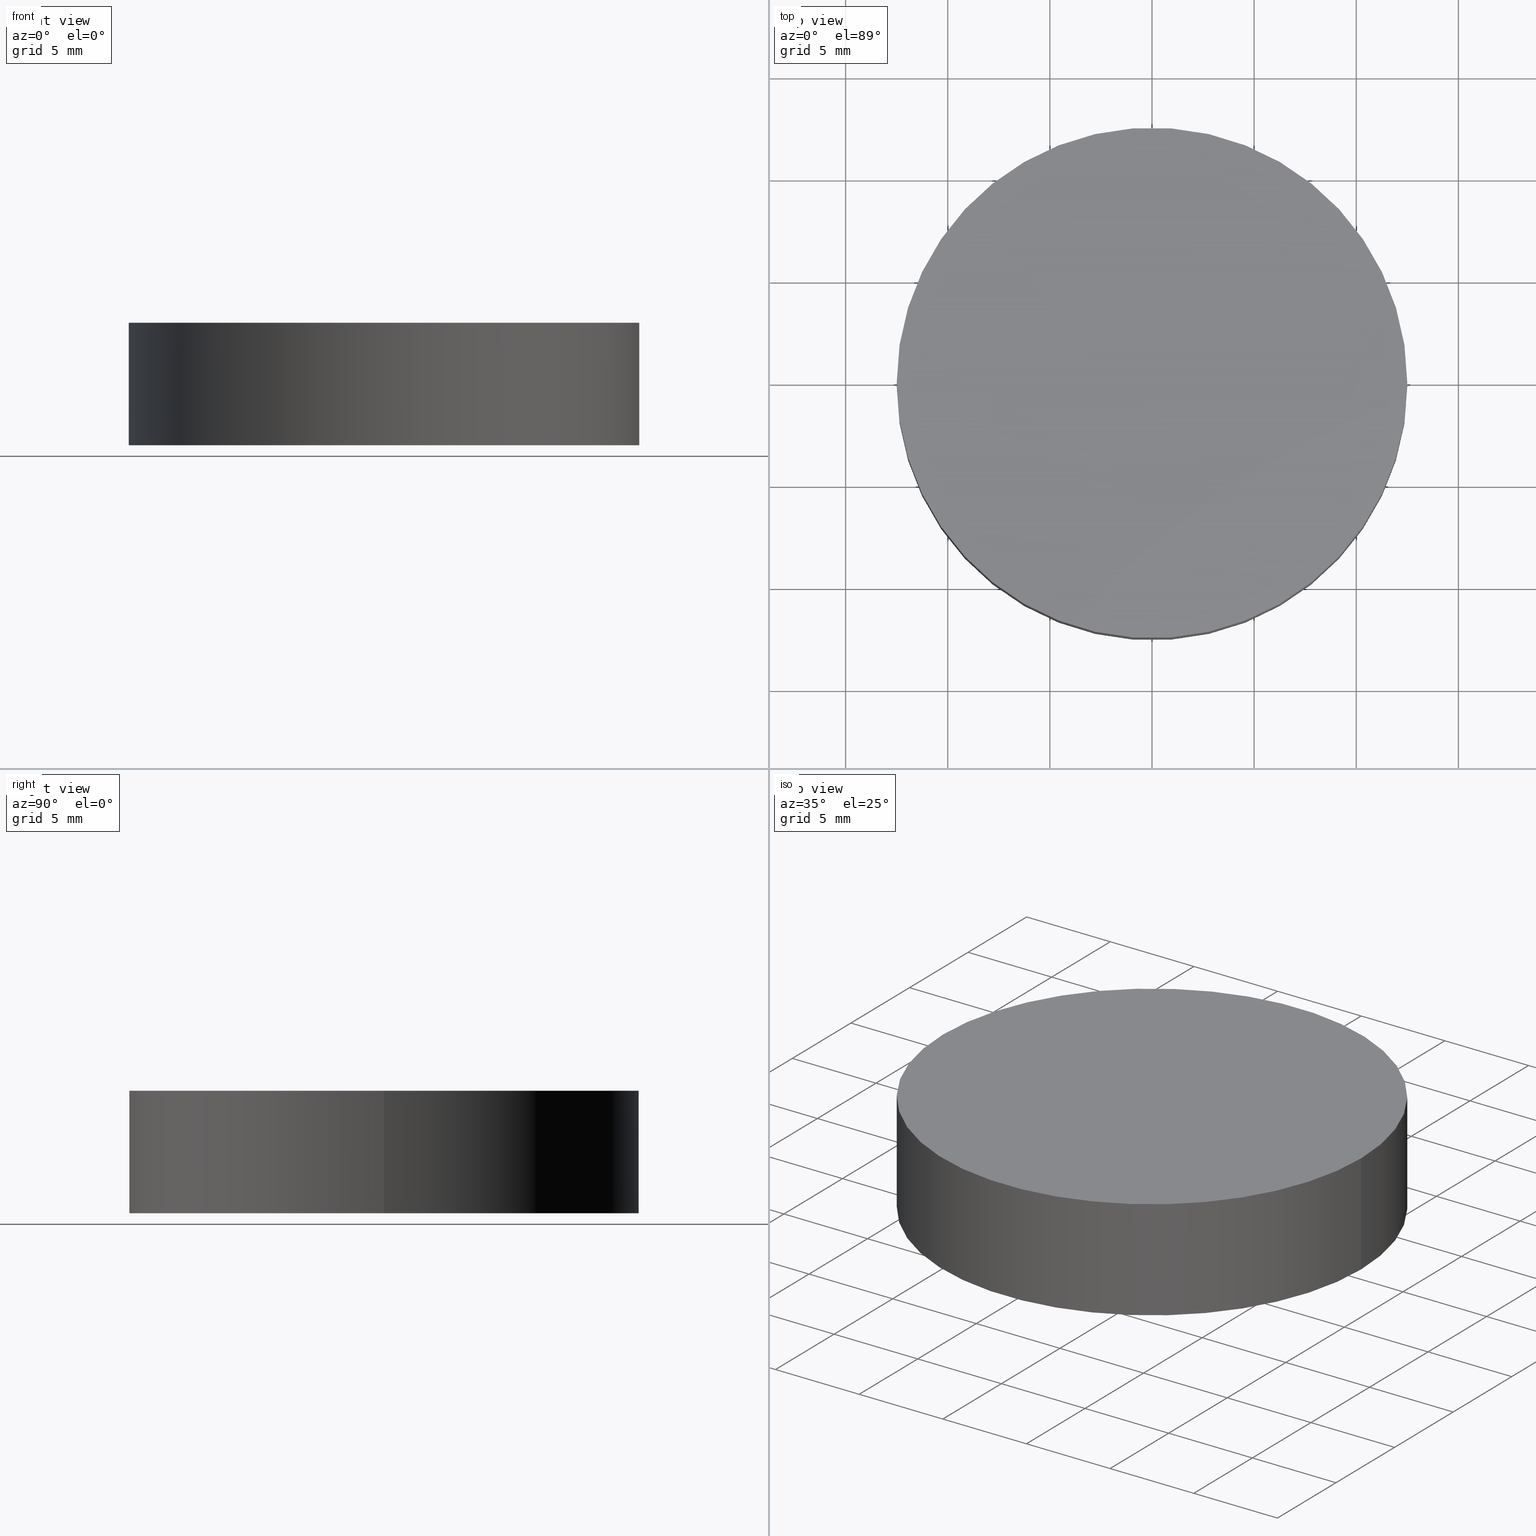
[diagram: canonical four-view strip — front | top / right | iso, engineering-drawing reading convention]
A machine part, canonical four-view strip (front | top / right | iso — engineering-drawing reading convention). The complete STEP part file that produces these views, byte-faithful:
ISO-10303-21;
HEADER;
FILE_DESCRIPTION (( 'STEP AP214' ),
    '1' );
FILE_NAME ('190060.STEP',
    '2019-07-16T03:25:15',
    ( 'user' ),
    ( '΢���й�' ),
    'SwSTEP 2.0',
    'SolidWorks 2016',
    '' );
FILE_SCHEMA (( 'AUTOMOTIVE_DESIGN' ));
ENDSEC;

DATA;
#1 = UNCERTAINTY_MEASURE_WITH_UNIT (LENGTH_MEASURE( 1.000000000000000100E-005 ), #112, 'distance_accuracy_value', 'NONE');
#2 = COLOUR_RGB ( '',1.000000000000000000, 1.000000000000000000, 1.000000000000000000 ) ;
#3 = ORIENTED_EDGE ( 'NONE', *, *, #28, .T. ) ;
#4 = ORIENTED_EDGE ( 'NONE', *, *, #28, .F. ) ;
#5 = CIRCLE ( 'NONE', #21, 12.50000000000000000 ) ;
#6 = PRODUCT ( '190060', '190060', '', ( #109 ) ) ;
#7 = DIRECTION ( 'NONE',  ( -0.0000000000000000000, -0.0000000000000000000, -1.000000000000000000 ) ) ;
#8 = APPLICATION_CONTEXT ( 'automotive_design' ) ;
#9 = CARTESIAN_POINT ( 'NONE',  ( 0.0000000000000000000, 0.0000000000000000000, 6.000000000000000000 ) ) ;
#10 = CIRCLE ( 'NONE', #39, 12.50000000000000000 ) ;
#11 = ORIENTED_EDGE ( 'NONE', *, *, #78, .F. ) ;
#12 = ORIENTED_EDGE ( 'NONE', *, *, #98, .F. ) ;
#13 = VECTOR ( 'NONE', #20, 1000.000000000000000 ) ;
#14 =( GEOMETRIC_REPRESENTATION_CONTEXT ( 3 ) GLOBAL_UNCERTAINTY_ASSIGNED_CONTEXT ( ( #132 ) ) GLOBAL_UNIT_ASSIGNED_CONTEXT ( ( #82, #19, #81 ) ) REPRESENTATION_CONTEXT ( 'NONE', 'WORKASPACE' ) );
#15 = AXIS2_PLACEMENT_3D ( 'NONE', #35, #93, #70 ) ;
#16 = ORIENTED_EDGE ( 'NONE', *, *, #23, .T. ) ;
#17 = APPLICATION_CONTEXT ( 'automotive_design' ) ;
#18 = MANIFOLD_SOLID_BREP ( '͹̨-����1', #84 ) ;
#19 =( NAMED_UNIT ( * ) PLANE_ANGLE_UNIT ( ) SI_UNIT ( $, .RADIAN. ) );
#20 = DIRECTION ( 'NONE',  ( -0.0000000000000000000, -0.0000000000000000000, -1.000000000000000000 ) ) ;
#21 = AXIS2_PLACEMENT_3D ( 'NONE', #9, #51, #43 ) ;
#22 = CYLINDRICAL_SURFACE ( 'NONE', #67, 12.50000000000000000 ) ;
#23 = EDGE_CURVE ( 'NONE', #119, #120, #91, .T. ) ;
#24 = PRODUCT_DEFINITION ( 'δ֪', '', #30, #138 ) ;
#25 = DIRECTION ( 'NONE',  ( 0.0000000000000000000, 0.0000000000000000000, 1.000000000000000000 ) ) ;
#26 = PLANE ( 'NONE',  #41 ) ;
#27 = PRODUCT_RELATED_PRODUCT_CATEGORY ( 'part', '', ( #6 ) ) ;
#28 = EDGE_CURVE ( 'NONE', #69, #119, #5, .T. ) ;
#29 = EDGE_CURVE ( 'NONE', #69, #37, #121, .T. ) ;
#30 = PRODUCT_DEFINITION_FORMATION_WITH_SPECIFIED_SOURCE ( '�κ�', '', #6, .NOT_KNOWN. ) ;
#31 = APPLICATION_PROTOCOL_DEFINITION ( 'draft international standard', 'automotive_design', 1998, #17 ) ;
#32 = FILL_AREA_STYLE_COLOUR ( '', #2 ) ;
#33 = CARTESIAN_POINT ( 'NONE',  ( 12.50000000000000000, 1.530808498934191500E-015, 6.000000000000000000 ) ) ;
#34 = DIRECTION ( 'NONE',  ( 0.0000000000000000000, 0.0000000000000000000, 1.000000000000000000 ) ) ;
#35 = CARTESIAN_POINT ( 'NONE',  ( 0.0000000000000000000, 0.0000000000000000000, 0.0000000000000000000 ) ) ;
#36 = CARTESIAN_POINT ( 'NONE',  ( 12.50000000000000000, 1.530808498934191500E-015, 6.000000000000000000 ) ) ;
#37 = VERTEX_POINT ( 'NONE', #46 ) ;
#38 = ORIENTED_EDGE ( 'NONE', *, *, #78, .T. ) ;
#39 = AXIS2_PLACEMENT_3D ( 'NONE', #55, #129, #64 ) ;
#40 = PRESENTATION_STYLE_ASSIGNMENT (( #52 ) ) ;
#41 = AXIS2_PLACEMENT_3D ( 'NONE', #73, #25, #104 ) ;
#42 = ADVANCED_FACE ( 'NONE', ( #53 ), #124, .T. ) ;
#43 = DIRECTION ( 'NONE',  ( 1.000000000000000000, 0.0000000000000000000, 0.0000000000000000000 ) ) ;
#44 = AXIS2_PLACEMENT_3D ( 'NONE', #140, #56, #130 ) ;
#45 =( NAMED_UNIT ( * ) PLANE_ANGLE_UNIT ( ) SI_UNIT ( $, .RADIAN. ) );
#46 = CARTESIAN_POINT ( 'NONE',  ( 12.50000000000000000, 1.530808498934191500E-015, 0.0000000000000000000 ) ) ;
#47 = PRESENTATION_LAYER_ASSIGNMENT (  '', '', ( #85 ) ) ;
#48 = CARTESIAN_POINT ( 'NONE',  ( 0.0000000000000000000, 0.0000000000000000000, 6.000000000000000000 ) ) ;
#49 = ORIENTED_EDGE ( 'NONE', *, *, #23, .F. ) ;
#50 = COLOUR_RGB ( '',1.000000000000000000, 1.000000000000000000, 1.000000000000000000 ) ;
#51 = DIRECTION ( 'NONE',  ( 0.0000000000000000000, 0.0000000000000000000, 1.000000000000000000 ) ) ;
#52 = SURFACE_STYLE_USAGE ( .BOTH. , #128 ) ;
#53 = FACE_OUTER_BOUND ( 'NONE', #117, .T. ) ;
#54 = PRESENTATION_STYLE_ASSIGNMENT (( #126 ) ) ;
#55 = CARTESIAN_POINT ( 'NONE',  ( 0.0000000000000000000, 0.0000000000000000000, 0.0000000000000000000 ) ) ;
#56 = DIRECTION ( 'NONE',  ( 0.0000000000000000000, 0.0000000000000000000, 1.000000000000000000 ) ) ;
#57 = ORIENTED_EDGE ( 'NONE', *, *, #113, .F. ) ;
#58 = CIRCLE ( 'NONE', #72, 12.50000000000000000 ) ;
#59 = ORIENTED_EDGE ( 'NONE', *, *, #29, .T. ) ;
#60 = ORIENTED_EDGE ( 'NONE', *, *, #113, .T. ) ;
#61 = DIRECTION ( 'NONE',  ( 1.000000000000000000, 0.0000000000000000000, -0.0000000000000000000 ) ) ;
#62 = FILL_AREA_STYLE ('',( #136 ) ) ;
#63 =( NAMED_UNIT ( * ) PLANE_ANGLE_UNIT ( ) SI_UNIT ( $, .RADIAN. ) );
#64 = DIRECTION ( 'NONE',  ( 1.000000000000000000, 0.0000000000000000000, 0.0000000000000000000 ) ) ;
#65 = DIRECTION ( 'NONE',  ( -0.0000000000000000000, -0.0000000000000000000, -1.000000000000000000 ) ) ;
#66 = SURFACE_STYLE_FILL_AREA ( #62 ) ;
#67 = AXIS2_PLACEMENT_3D ( 'NONE', #48, #65, #75 ) ;
#68 = FACE_OUTER_BOUND ( 'NONE', #90, .T. ) ;
#69 = VERTEX_POINT ( 'NONE', #36 ) ;
#70 = DIRECTION ( 'NONE',  ( 1.000000000000000000, 0.0000000000000000000, 0.0000000000000000000 ) ) ;
#71 = APPLICATION_PROTOCOL_DEFINITION ( 'draft international standard', 'automotive_design', 1998, #8 ) ;
#72 = AXIS2_PLACEMENT_3D ( 'NONE', #103, #34, #83 ) ;
#73 = CARTESIAN_POINT ( 'NONE',  ( 0.0000000000000000000, 0.0000000000000000000, 6.000000000000000000 ) ) ;
#74 = CARTESIAN_POINT ( 'NONE',  ( -12.50000000000000000, 0.0000000000000000000, 6.000000000000000000 ) ) ;
#75 = DIRECTION ( 'NONE',  ( -1.000000000000000000, 0.0000000000000000000, 0.0000000000000000000 ) ) ;
#76 = PRODUCT_DEFINITION_SHAPE ( 'NONE', 'NONE',  #24 ) ;
#77 = CIRCLE ( 'NONE', #44, 12.50000000000000000 ) ;
#78 = EDGE_CURVE ( 'NONE', #120, #37, #77, .T. ) ;
#79 = SURFACE_STYLE_FILL_AREA ( #99 ) ;
#80 = ADVANCED_FACE ( 'NONE', ( #133 ), #26, .T. ) ;
#81 =( NAMED_UNIT ( * ) SI_UNIT ( $, .STERADIAN. ) SOLID_ANGLE_UNIT ( ) );
#82 =( LENGTH_UNIT ( ) NAMED_UNIT ( * ) SI_UNIT ( .MILLI., .METRE. ) );
#83 = DIRECTION ( 'NONE',  ( 1.000000000000000000, 0.0000000000000000000, 0.0000000000000000000 ) ) ;
#84 = CLOSED_SHELL ( 'NONE', ( #88, #42, #80, #134 ) ) ;
#85 = STYLED_ITEM ( 'NONE', ( #54 ), #18 ) ;
#86 =( GEOMETRIC_REPRESENTATION_CONTEXT ( 3 ) GLOBAL_UNCERTAINTY_ASSIGNED_CONTEXT ( ( #89 ) ) GLOBAL_UNIT_ASSIGNED_CONTEXT ( ( #139, #63, #111 ) ) REPRESENTATION_CONTEXT ( 'NONE', 'WORKASPACE' ) );
#87 = EDGE_LOOP ( 'NONE', ( #11, #12 ) ) ;
#88 = ADVANCED_FACE ( 'NONE', ( #68 ), #22, .T. ) ;
#89 = UNCERTAINTY_MEASURE_WITH_UNIT (LENGTH_MEASURE( 1.000000000000000100E-005 ), #139, 'distance_accuracy_value', 'NONE');
#90 = EDGE_LOOP ( 'NONE', ( #4, #59, #96, #49 ) ) ;
#91 = LINE ( 'NONE', #127, #13 ) ;
#92 = DIRECTION ( 'NONE',  ( -1.000000000000000000, 0.0000000000000000000, 0.0000000000000000000 ) ) ;
#93 = DIRECTION ( 'NONE',  ( 0.0000000000000000000, 0.0000000000000000000, 1.000000000000000000 ) ) ;
#94 = MECHANICAL_DESIGN_GEOMETRIC_PRESENTATION_REPRESENTATION (  '', ( #85 ), #14 ) ;
#95 = AXIS2_PLACEMENT_3D ( 'NONE', #116, #135, #61 ) ;
#96 = ORIENTED_EDGE ( 'NONE', *, *, #98, .T. ) ;
#97 = CARTESIAN_POINT ( 'NONE',  ( 0.0000000000000000000, 0.0000000000000000000, 6.000000000000000000 ) ) ;
#98 = EDGE_CURVE ( 'NONE', #37, #120, #10, .T. ) ;
#99 = FILL_AREA_STYLE ('',( #32 ) ) ;
#100 =( NAMED_UNIT ( * ) SI_UNIT ( $, .STERADIAN. ) SOLID_ANGLE_UNIT ( ) );
#101 = CARTESIAN_POINT ( 'NONE',  ( -12.50000000000000000, 0.0000000000000000000, 0.0000000000000000000 ) ) ;
#102 = VECTOR ( 'NONE', #7, 1000.000000000000000 ) ;
#103 = CARTESIAN_POINT ( 'NONE',  ( 0.0000000000000000000, 0.0000000000000000000, 6.000000000000000000 ) ) ;
#104 = DIRECTION ( 'NONE',  ( 1.000000000000000000, 0.0000000000000000000, -0.0000000000000000000 ) ) ;
#105 = ADVANCED_BREP_SHAPE_REPRESENTATION ( '190060', ( #18, #15 ), #86 ) ;
#106 = EDGE_LOOP ( 'NONE', ( #60, #3 ) ) ;
#107 = STYLED_ITEM ( 'NONE', ( #40 ), #105 ) ;
#108 = ORIENTED_EDGE ( 'NONE', *, *, #29, .F. ) ;
#109 = PRODUCT_CONTEXT ( 'NONE', #17, 'mechanical' ) ;
#110 = SURFACE_SIDE_STYLE ('',( #79 ) ) ;
#111 =( NAMED_UNIT ( * ) SI_UNIT ( $, .STERADIAN. ) SOLID_ANGLE_UNIT ( ) );
#112 =( LENGTH_UNIT ( ) NAMED_UNIT ( * ) SI_UNIT ( .MILLI., .METRE. ) );
#113 = EDGE_CURVE ( 'NONE', #119, #69, #58, .T. ) ;
#114 = PRESENTATION_LAYER_ASSIGNMENT (  '', '', ( #107 ) ) ;
#115 = PLANE ( 'NONE',  #95 ) ;
#116 = CARTESIAN_POINT ( 'NONE',  ( 0.0000000000000000000, 0.0000000000000000000, 0.0000000000000000000 ) ) ;
#117 = EDGE_LOOP ( 'NONE', ( #108, #57, #16, #38 ) ) ;
#118 = FACE_OUTER_BOUND ( 'NONE', #87, .T. ) ;
#119 = VERTEX_POINT ( 'NONE', #74 ) ;
#120 = VERTEX_POINT ( 'NONE', #101 ) ;
#121 = LINE ( 'NONE', #33, #102 ) ;
#122 = AXIS2_PLACEMENT_3D ( 'NONE', #97, #137, #92 ) ;
#123 = MECHANICAL_DESIGN_GEOMETRIC_PRESENTATION_REPRESENTATION (  '', ( #107 ), #131 ) ;
#124 = CYLINDRICAL_SURFACE ( 'NONE', #122, 12.50000000000000000 ) ;
#125 = SHAPE_DEFINITION_REPRESENTATION ( #76, #105 ) ;
#126 = SURFACE_STYLE_USAGE ( .BOTH. , #110 ) ;
#127 = CARTESIAN_POINT ( 'NONE',  ( -12.50000000000000000, 0.0000000000000000000, 6.000000000000000000 ) ) ;
#128 = SURFACE_SIDE_STYLE ('',( #66 ) ) ;
#129 = DIRECTION ( 'NONE',  ( 0.0000000000000000000, 0.0000000000000000000, 1.000000000000000000 ) ) ;
#130 = DIRECTION ( 'NONE',  ( 1.000000000000000000, 0.0000000000000000000, 0.0000000000000000000 ) ) ;
#131 =( GEOMETRIC_REPRESENTATION_CONTEXT ( 3 ) GLOBAL_UNCERTAINTY_ASSIGNED_CONTEXT ( ( #1 ) ) GLOBAL_UNIT_ASSIGNED_CONTEXT ( ( #112, #45, #100 ) ) REPRESENTATION_CONTEXT ( 'NONE', 'WORKASPACE' ) );
#132 = UNCERTAINTY_MEASURE_WITH_UNIT (LENGTH_MEASURE( 1.000000000000000100E-005 ), #82, 'distance_accuracy_value', 'NONE');
#133 = FACE_OUTER_BOUND ( 'NONE', #106, .T. ) ;
#134 = ADVANCED_FACE ( 'NONE', ( #118 ), #115, .F. ) ;
#135 = DIRECTION ( 'NONE',  ( 0.0000000000000000000, 0.0000000000000000000, 1.000000000000000000 ) ) ;
#136 = FILL_AREA_STYLE_COLOUR ( '', #50 ) ;
#137 = DIRECTION ( 'NONE',  ( -0.0000000000000000000, -0.0000000000000000000, -1.000000000000000000 ) ) ;
#138 = PRODUCT_DEFINITION_CONTEXT ( 'detailed design', #8, 'design' ) ;
#139 =( LENGTH_UNIT ( ) NAMED_UNIT ( * ) SI_UNIT ( .MILLI., .METRE. ) );
#140 = CARTESIAN_POINT ( 'NONE',  ( 0.0000000000000000000, 0.0000000000000000000, 0.0000000000000000000 ) ) ;
ENDSEC;
END-ISO-10303-21;
